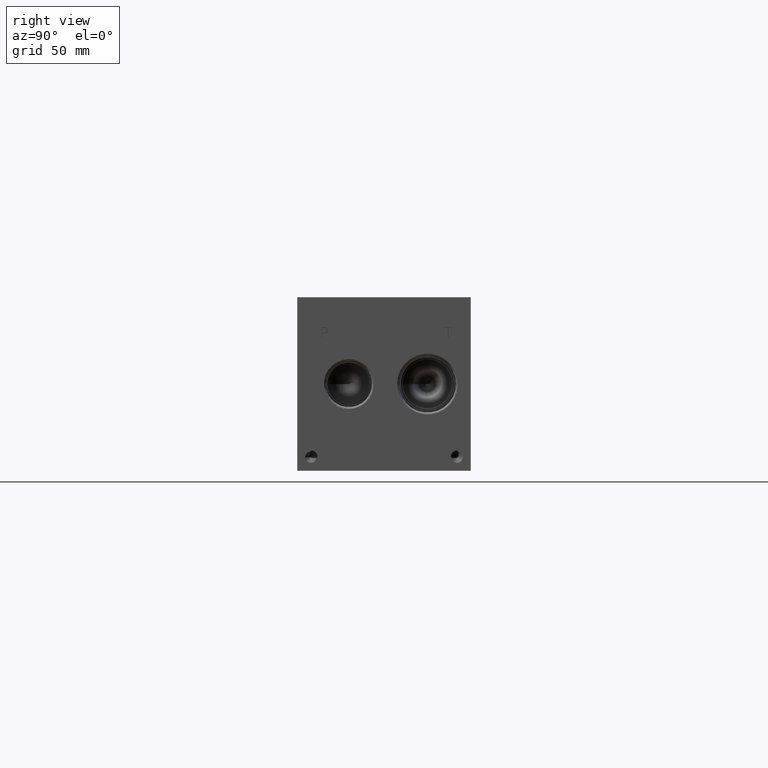
[diagram: clean part render]
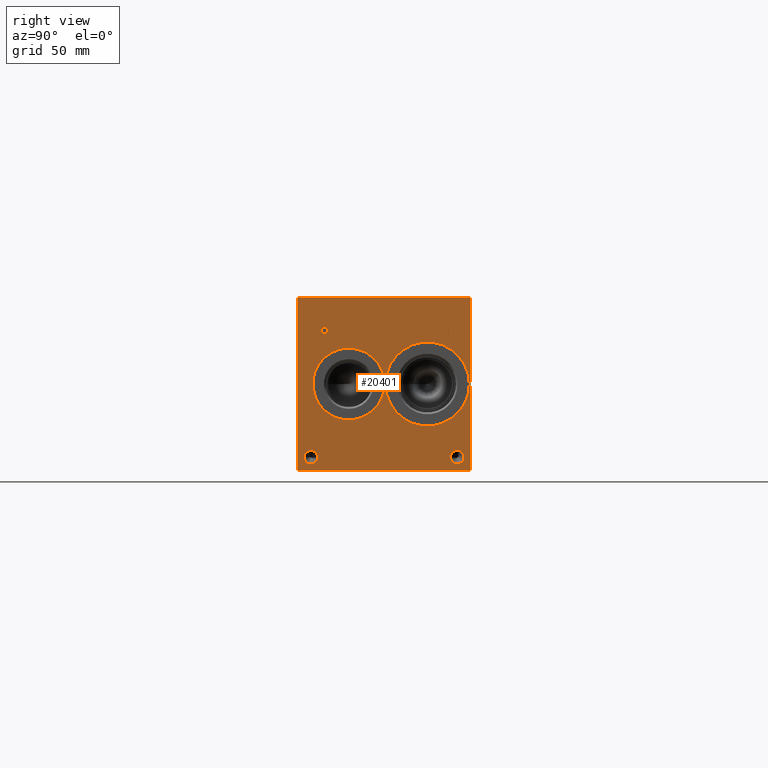
[diagram: same view with one face highlighted and labeled with its STEP entity id]
A machine part, right view. The second image highlights one B-rep face of the part: STEP entity #20401.
In plain terms, the highlighted planar face has unit normal (1, 0, 0).
Its self-contained STEP definition (entity closure, byte-faithful):
#398=CIRCLE('',#21455,24.5618);
#399=CIRCLE('',#21456,24.5618);
#400=CIRCLE('',#21457,21.0185);
#401=CIRCLE('',#21458,21.0185);
#402=CIRCLE('',#21459,3.9624);
#403=CIRCLE('',#21460,3.9624);
#404=CIRCLE('',#21461,3.9624);
#405=CIRCLE('',#21462,3.9624);
#1177=FACE_BOUND('',#3510,.T.);
#1178=FACE_BOUND('',#3511,.T.);
#1179=FACE_BOUND('',#3512,.T.);
#1180=FACE_BOUND('',#3513,.T.);
#1181=FACE_BOUND('',#3514,.T.);
#1182=FACE_BOUND('',#3515,.T.);
#1597=B_SPLINE_CURVE_WITH_KNOTS('',2,(#31489,#31490,#31491,#31492),
 .UNSPECIFIED.,.F.,.F.,(3,1,3),(0.,1.,2.),.UNSPECIFIED.);
#1599=B_SPLINE_CURVE_WITH_KNOTS('',2,(#31510,#31511,#31512,#31513),
 .UNSPECIFIED.,.F.,.F.,(3,1,3),(0.,1.,2.),.UNSPECIFIED.);
#1601=B_SPLINE_CURVE_WITH_KNOTS('',2,(#31559,#31560,#31561,#31562),
 .UNSPECIFIED.,.F.,.F.,(3,1,3),(0.,1.,2.),.UNSPECIFIED.);
#1603=B_SPLINE_CURVE_WITH_KNOTS('',2,(#31577,#31578,#31579,#31580),
 .UNSPECIFIED.,.F.,.F.,(3,1,3),(0.,1.,2.),.UNSPECIFIED.);
#2340=FACE_OUTER_BOUND('',#3509,.T.);
#3509=EDGE_LOOP('',(#14968,#14969,#14970,#14971));
#3510=EDGE_LOOP('',(#14972,#14973));
#3511=EDGE_LOOP('',(#14974,#14975));
#3512=EDGE_LOOP('',(#14976,#14977));
#3513=EDGE_LOOP('',(#14978,#14979));
#3514=EDGE_LOOP('',(#14980,#14981,#14982,#14983,#14984,#14985,#14986,#14987));
#3515=EDGE_LOOP('',(#14988,#14989,#14990,#14991,#14992,#14993,#14994,#14995,
#14996));
#4753=LINE('',#29938,#6508);
#5248=LINE('',#31522,#7003);
#5251=LINE('',#31528,#7006);
#5254=LINE('',#31534,#7009);
#5257=LINE('',#31540,#7012);
#5260=LINE('',#31546,#7015);
#5264=LINE('',#31588,#7019);
#5265=LINE('',#31590,#7020);
#5266=LINE('',#31591,#7021);
#5267=LINE('',#31610,#7022);
#5268=LINE('',#31612,#7023);
#5269=LINE('',#31614,#7024);
#5270=LINE('',#31616,#7025);
#5271=LINE('',#31618,#7026);
#5272=LINE('',#31620,#7027);
#5273=LINE('',#31622,#7028);
#5274=LINE('',#31623,#7029);
#6508=VECTOR('',#23293,10.);
#7003=VECTOR('',#24132,10.);
#7006=VECTOR('',#24137,10.);
#7009=VECTOR('',#24142,10.);
#7012=VECTOR('',#24147,10.);
#7015=VECTOR('',#24152,10.);
#7019=VECTOR('',#24160,10.);
#7020=VECTOR('',#24161,10.);
#7021=VECTOR('',#24162,10.);
#7022=VECTOR('',#24179,10.);
#7023=VECTOR('',#24180,10.);
#7024=VECTOR('',#24181,10.);
#7025=VECTOR('',#24182,10.);
#7026=VECTOR('',#24183,10.);
#7027=VECTOR('',#24184,10.);
#7028=VECTOR('',#24185,10.);
#7029=VECTOR('',#24186,10.);
#8280=VERTEX_POINT('',#29935);
#8281=VERTEX_POINT('',#29937);
#8744=VERTEX_POINT('',#31487);
#8745=VERTEX_POINT('',#31488);
#8748=VERTEX_POINT('',#31509);
#8750=VERTEX_POINT('',#31521);
#8752=VERTEX_POINT('',#31527);
#8754=VERTEX_POINT('',#31533);
#8756=VERTEX_POINT('',#31539);
#8758=VERTEX_POINT('',#31545);
#8760=VERTEX_POINT('',#31558);
#8762=VERTEX_POINT('',#31587);
#8763=VERTEX_POINT('',#31589);
#8764=VERTEX_POINT('',#31592);
#8765=VERTEX_POINT('',#31593);
#8766=VERTEX_POINT('',#31596);
#8767=VERTEX_POINT('',#31597);
#8768=VERTEX_POINT('',#31600);
#8769=VERTEX_POINT('',#31601);
#8770=VERTEX_POINT('',#31604);
#8771=VERTEX_POINT('',#31605);
#8772=VERTEX_POINT('',#31608);
#8773=VERTEX_POINT('',#31609);
#8774=VERTEX_POINT('',#31611);
#8775=VERTEX_POINT('',#31613);
#8776=VERTEX_POINT('',#31615);
#8777=VERTEX_POINT('',#31617);
#8778=VERTEX_POINT('',#31619);
#8779=VERTEX_POINT('',#31621);
#10502=EDGE_CURVE('',#8280,#8281,#4753,.T.);
#11104=EDGE_CURVE('',#8744,#8745,#1597,.T.);
#11108=EDGE_CURVE('',#8748,#8744,#1599,.T.);
#11111=EDGE_CURVE('',#8750,#8748,#5248,.T.);
#11114=EDGE_CURVE('',#8752,#8750,#5251,.T.);
#11117=EDGE_CURVE('',#8754,#8752,#5254,.T.);
#11120=EDGE_CURVE('',#8756,#8754,#5257,.T.);
#11123=EDGE_CURVE('',#8758,#8756,#5260,.T.);
#11126=EDGE_CURVE('',#8760,#8758,#1601,.T.);
#11129=EDGE_CURVE('',#8745,#8760,#1603,.T.);
#11131=EDGE_CURVE('',#8280,#8762,#5264,.T.);
#11132=EDGE_CURVE('',#8762,#8763,#5265,.T.);
#11133=EDGE_CURVE('',#8281,#8763,#5266,.T.);
#11134=EDGE_CURVE('',#8764,#8765,#398,.T.);
#11135=EDGE_CURVE('',#8765,#8764,#399,.T.);
#11136=EDGE_CURVE('',#8766,#8767,#400,.T.);
#11137=EDGE_CURVE('',#8767,#8766,#401,.T.);
#11138=EDGE_CURVE('',#8768,#8769,#402,.T.);
#11139=EDGE_CURVE('',#8769,#8768,#403,.T.);
#11140=EDGE_CURVE('',#8770,#8771,#404,.T.);
#11141=EDGE_CURVE('',#8771,#8770,#405,.T.);
#11142=EDGE_CURVE('',#8772,#8773,#5267,.T.);
#11143=EDGE_CURVE('',#8773,#8774,#5268,.T.);
#11144=EDGE_CURVE('',#8774,#8775,#5269,.T.);
#11145=EDGE_CURVE('',#8775,#8776,#5270,.T.);
#11146=EDGE_CURVE('',#8776,#8777,#5271,.T.);
#11147=EDGE_CURVE('',#8777,#8778,#5272,.T.);
#11148=EDGE_CURVE('',#8778,#8779,#5273,.T.);
#11149=EDGE_CURVE('',#8779,#8772,#5274,.T.);
#14968=ORIENTED_EDGE('',*,*,#11131,.T.);
#14969=ORIENTED_EDGE('',*,*,#11132,.T.);
#14970=ORIENTED_EDGE('',*,*,#11133,.F.);
#14971=ORIENTED_EDGE('',*,*,#10502,.F.);
#14972=ORIENTED_EDGE('',*,*,#11134,.T.);
#14973=ORIENTED_EDGE('',*,*,#11135,.T.);
#14974=ORIENTED_EDGE('',*,*,#11136,.T.);
#14975=ORIENTED_EDGE('',*,*,#11137,.T.);
#14976=ORIENTED_EDGE('',*,*,#11138,.T.);
#14977=ORIENTED_EDGE('',*,*,#11139,.T.);
#14978=ORIENTED_EDGE('',*,*,#11140,.T.);
#14979=ORIENTED_EDGE('',*,*,#11141,.T.);
#14980=ORIENTED_EDGE('',*,*,#11142,.T.);
#14981=ORIENTED_EDGE('',*,*,#11143,.T.);
#14982=ORIENTED_EDGE('',*,*,#11144,.T.);
#14983=ORIENTED_EDGE('',*,*,#11145,.T.);
#14984=ORIENTED_EDGE('',*,*,#11146,.T.);
#14985=ORIENTED_EDGE('',*,*,#11147,.T.);
#14986=ORIENTED_EDGE('',*,*,#11148,.T.);
#14987=ORIENTED_EDGE('',*,*,#11149,.T.);
#14988=ORIENTED_EDGE('',*,*,#11104,.T.);
#14989=ORIENTED_EDGE('',*,*,#11129,.T.);
#14990=ORIENTED_EDGE('',*,*,#11126,.T.);
#14991=ORIENTED_EDGE('',*,*,#11123,.T.);
#14992=ORIENTED_EDGE('',*,*,#11120,.T.);
#14993=ORIENTED_EDGE('',*,*,#11117,.T.);
#14994=ORIENTED_EDGE('',*,*,#11114,.T.);
#14995=ORIENTED_EDGE('',*,*,#11111,.T.);
#14996=ORIENTED_EDGE('',*,*,#11108,.T.);
#19113=PLANE('',#21454);
#20401=ADVANCED_FACE('',(#2340,#1177,#1178,#1179,#1180,#1181,#1182),#19113,
 .T.);
#21454=AXIS2_PLACEMENT_3D('',#31586,#24158,#24159);
#21455=AXIS2_PLACEMENT_3D('',#31594,#24163,#24164);
#21456=AXIS2_PLACEMENT_3D('',#31595,#24165,#24166);
#21457=AXIS2_PLACEMENT_3D('',#31598,#24167,#24168);
#21458=AXIS2_PLACEMENT_3D('',#31599,#24169,#24170);
#21459=AXIS2_PLACEMENT_3D('',#31602,#24171,#24172);
#21460=AXIS2_PLACEMENT_3D('',#31603,#24173,#24174);
#21461=AXIS2_PLACEMENT_3D('',#31606,#24175,#24176);
#21462=AXIS2_PLACEMENT_3D('',#31607,#24177,#24178);
#23293=DIRECTION('',(0.,0.,1.));
#24132=DIRECTION('',(0.,1.,0.));
#24137=DIRECTION('',(0.,0.,1.));
#24142=DIRECTION('',(0.,-1.,0.));
#24147=DIRECTION('',(0.,0.,-1.));
#24152=DIRECTION('',(0.,-1.,0.));
#24158=DIRECTION('center_axis',(1.,0.,0.));
#24159=DIRECTION('ref_axis',(0.,1.,0.));
#24160=DIRECTION('',(0.,1.,0.));
#24161=DIRECTION('',(0.,0.,1.));
#24162=DIRECTION('',(0.,1.,0.));
#24163=DIRECTION('center_axis',(-1.,0.,0.));
#24164=DIRECTION('ref_axis',(0.,1.,0.));
#24165=DIRECTION('center_axis',(-1.,0.,0.));
#24166=DIRECTION('ref_axis',(0.,1.,0.));
#24167=DIRECTION('center_axis',(-1.,0.,0.));
#24168=DIRECTION('ref_axis',(0.,0.,-1.));
#24169=DIRECTION('center_axis',(-1.,0.,0.));
#24170=DIRECTION('ref_axis',(0.,0.,-1.));
#24171=DIRECTION('center_axis',(-1.,0.,0.));
#24172=DIRECTION('ref_axis',(0.,1.,0.));
#24173=DIRECTION('center_axis',(-1.,0.,0.));
#24174=DIRECTION('ref_axis',(0.,1.,0.));
#24175=DIRECTION('center_axis',(-1.,0.,0.));
#24176=DIRECTION('ref_axis',(0.,1.,0.));
#24177=DIRECTION('center_axis',(-1.,0.,0.));
#24178=DIRECTION('ref_axis',(0.,1.,0.));
#24179=DIRECTION('',(0.,-1.,0.));
#24180=DIRECTION('',(0.,0.,1.));
#24181=DIRECTION('',(0.,-1.,0.));
#24182=DIRECTION('',(0.,0.,1.));
#24183=DIRECTION('',(0.,1.,0.));
#24184=DIRECTION('',(0.,0.,-1.));
#24185=DIRECTION('',(0.,-1.,0.));
#24186=DIRECTION('',(0.,0.,-1.));
#29935=CARTESIAN_POINT('',(403.225,0.,0.));
#29937=CARTESIAN_POINT('',(403.225,0.,101.6));
#29938=CARTESIAN_POINT('',(403.225,0.,0.));
#31487=CARTESIAN_POINT('',(403.225,17.3117672023594,83.6777681439707));
#31488=CARTESIAN_POINT('',(403.225,18.068209654532,82.159737372604));
#31489=CARTESIAN_POINT('Ctrl Pts',(403.225,17.3117672023594,83.6777681439707));
#31490=CARTESIAN_POINT('Ctrl Pts',(403.225,17.6668320268486,83.4359123939564));
#31491=CARTESIAN_POINT('Ctrl Pts',(403.225,18.068209654532,82.6897616758269));
#31492=CARTESIAN_POINT('Ctrl Pts',(403.225,18.068209654532,82.159737372604));
#31509=CARTESIAN_POINT('',(403.225,15.6496521543883,84.0739999046326));
#31510=CARTESIAN_POINT('Ctrl Pts',(403.225,15.6496521543883,84.0739999046326));
#31511=CARTESIAN_POINT('Ctrl Pts',(403.225,16.2156975267624,84.0739999046326));
#31512=CARTESIAN_POINT('Ctrl Pts',(403.225,17.008161048086,83.8887486918556));
#31513=CARTESIAN_POINT('Ctrl Pts',(403.225,17.3117672023594,83.6777681439707));
#31521=CARTESIAN_POINT('',(403.225,14.0544333776978,84.0739999046326));
#31522=CARTESIAN_POINT('',(403.225,7.0272166888489,84.0739999046326));
#31527=CARTESIAN_POINT('',(403.225,14.0544333776978,77.724));
#31528=CARTESIAN_POINT('',(403.225,14.0544333776978,38.862));
#31533=CARTESIAN_POINT('',(403.225,14.8983555692373,77.724));
#31534=CARTESIAN_POINT('',(403.225,7.44917778461864,77.724));
#31539=CARTESIAN_POINT('',(403.225,14.8983555692373,80.0910988299279));
#31540=CARTESIAN_POINT('',(403.225,14.8983555692373,40.0455494149639));
#31545=CARTESIAN_POINT('',(403.225,15.6136310852372,80.0910988299279));
#31546=CARTESIAN_POINT('',(403.225,7.80681554261862,80.0910988299279));
#31558=CARTESIAN_POINT('',(403.225,17.5124560162011,80.7497698086904));
#31559=CARTESIAN_POINT('Ctrl Pts',(403.225,17.5124560162011,80.7497698086904));
#31560=CARTESIAN_POINT('Ctrl Pts',(403.225,17.1831205268198,80.4255801863307));
#31561=CARTESIAN_POINT('Ctrl Pts',(403.225,16.2928855320861,80.0910988299279));
#31562=CARTESIAN_POINT('Ctrl Pts',(403.225,15.6136310852372,80.0910988299279));
#31577=CARTESIAN_POINT('Ctrl Pts',(403.225,18.068209654532,82.159737372604));
#31578=CARTESIAN_POINT('Ctrl Pts',(403.225,18.068209654532,81.7480680108774));
#31579=CARTESIAN_POINT('Ctrl Pts',(403.225,17.7748952343018,81.0070631597695));
#31580=CARTESIAN_POINT('Ctrl Pts',(403.225,17.5124560162011,80.7497698086904));
#31586=CARTESIAN_POINT('Origin',(403.225,0.,0.));
#31587=CARTESIAN_POINT('',(403.225,101.6,0.));
#31588=CARTESIAN_POINT('',(403.225,0.,0.));
#31589=CARTESIAN_POINT('',(403.225,101.6,101.6));
#31590=CARTESIAN_POINT('',(403.225,101.6,0.));
#31591=CARTESIAN_POINT('',(403.225,0.,101.6));
#31592=CARTESIAN_POINT('',(403.225,100.7618,50.8));
#31593=CARTESIAN_POINT('',(403.225,51.6382,50.8));
#31594=CARTESIAN_POINT('Origin',(403.225,76.2,50.8));
#31595=CARTESIAN_POINT('Origin',(403.225,76.2,50.8));
#31596=CARTESIAN_POINT('',(403.225,30.1752,29.7815));
#31597=CARTESIAN_POINT('',(403.225,30.1752,71.8185));
#31598=CARTESIAN_POINT('Origin',(403.225,30.1752,50.8));
#31599=CARTESIAN_POINT('Origin',(403.225,30.1752,50.8));
#31600=CARTESIAN_POINT('',(403.225,11.8872,7.9248));
#31601=CARTESIAN_POINT('',(403.225,3.9624,7.9248));
#31602=CARTESIAN_POINT('Origin',(403.225,7.9248,7.9248));
#31603=CARTESIAN_POINT('Origin',(403.225,7.9248,7.9248));
#31604=CARTESIAN_POINT('',(403.225,97.6376,7.9248));
#31605=CARTESIAN_POINT('',(403.225,89.7128,7.9248));
#31606=CARTESIAN_POINT('Origin',(403.225,93.6752,7.9248));
#31607=CARTESIAN_POINT('Origin',(403.225,93.6752,7.9248));
#31608=CARTESIAN_POINT('',(403.225,88.821165271453,77.724));
#31609=CARTESIAN_POINT('',(403.225,87.9772430799135,77.724));
#31610=CARTESIAN_POINT('',(403.225,44.4105826357265,77.724));
#31611=CARTESIAN_POINT('',(403.225,87.9772430799135,83.3227033194815));
#31612=CARTESIAN_POINT('',(403.225,87.9772430799135,38.862));
#31613=CARTESIAN_POINT('',(403.225,85.8468541329784,83.3227033194815));
#31614=CARTESIAN_POINT('',(403.225,43.9886215399568,83.3227033194815));
#31615=CARTESIAN_POINT('',(403.225,85.8468541329784,84.0739999046326));
#31616=CARTESIAN_POINT('',(403.225,85.8468541329784,41.6613516597408));
#31617=CARTESIAN_POINT('',(403.225,90.9515542183881,84.0739999046326));
#31618=CARTESIAN_POINT('',(403.225,42.9234270664892,84.0739999046326));
#31619=CARTESIAN_POINT('',(403.225,90.9515542183881,83.3227033194815));
#31620=CARTESIAN_POINT('',(403.225,90.9515542183881,42.0369999523163));
#31621=CARTESIAN_POINT('',(403.225,88.821165271453,83.3227033194815));
#31622=CARTESIAN_POINT('',(403.225,45.475777109194,83.3227033194815));
#31623=CARTESIAN_POINT('',(403.225,88.821165271453,41.6613516597408));